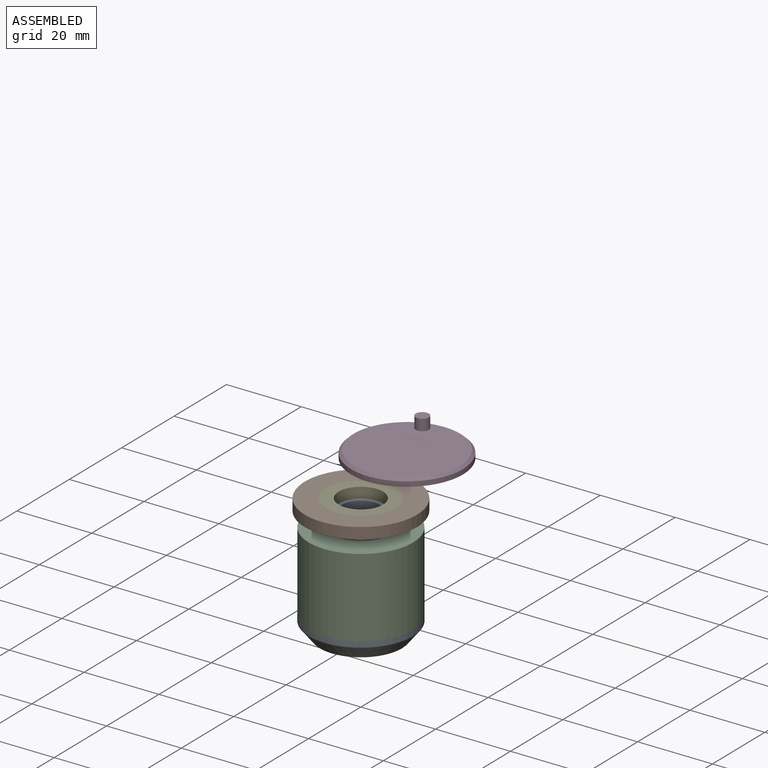
[diagram: assembled view]
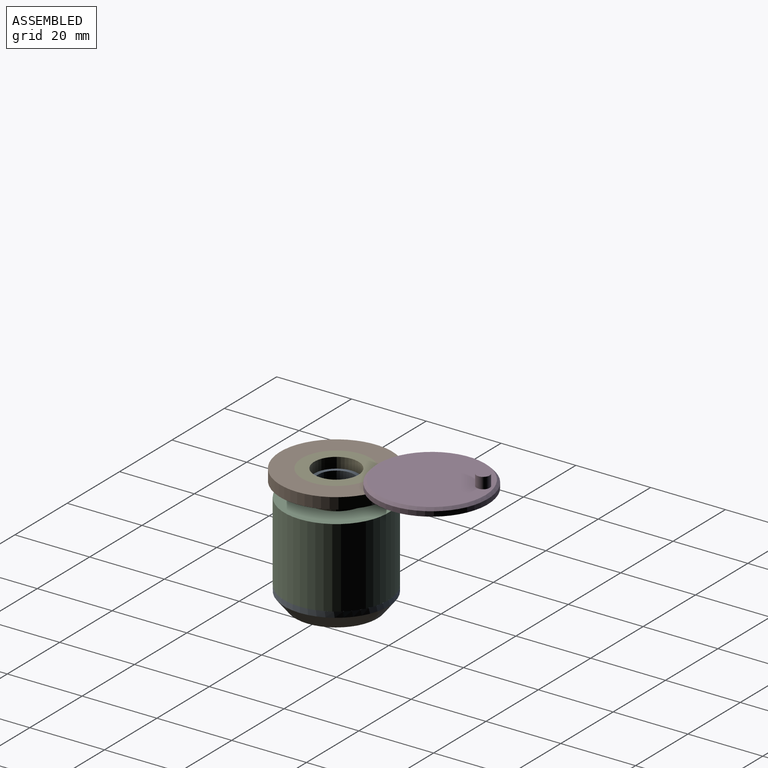
[diagram: assembled view, second angle]
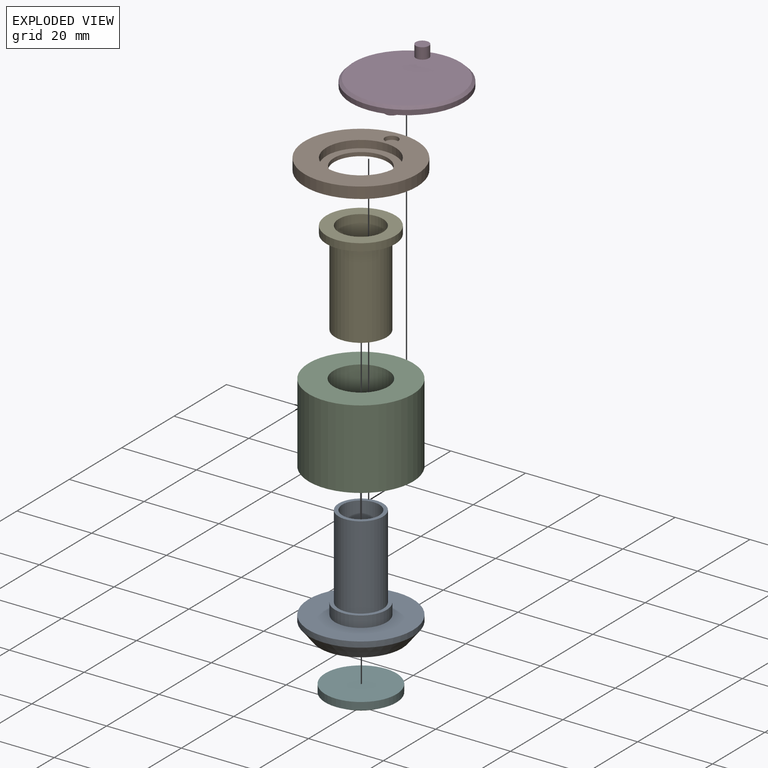
[diagram: exploded view]
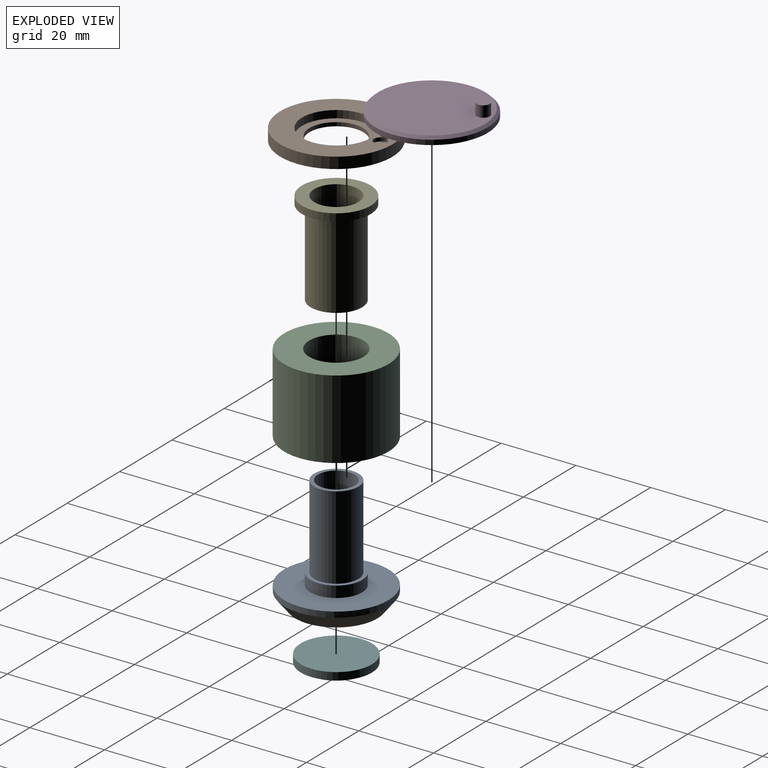
[diagram: exploded view, second angle]
ASSEMBLY  parts=6 mates=5
PART A: 11 faces, bbox 27.9x27.9x30.5 mm
  f0: cylinder r=13.95mm len=27.9mm, axis (0,0,1), area 131.5mm2, adj f7,f10
  f1: plane 22x22mm, normal (0,0,-1), area 96.6mm2, adj f9,f10
  f2: cylinder r=4.92mm len=28.5mm, axis (0,0,-1), area 881.9mm2, adj f4,f8
  f3: cylinder r=5.92mm len=22.3mm, axis (0,0,-1), area 830.2mm2, adj f4,f6
  f4: plane 11.85x11.85mm, normal (0,0,1), area 34.1mm2, adj f2,f3
  f5: cylinder r=6.9mm len=13.8mm, axis (0,0,1), area 130.1mm2, adj f6,f7
  f6: plane 13.8x13.8mm, normal (0,0,1), area 39.3mm2, adj f3,f5
  f7: plane 27.9x27.9mm, normal (0,0,1), area 461.8mm2, adj f0,f5
  f8: plane 19x19mm, normal (0,0,-1), area 207.3mm2, adj f2,f9
  f9: cylinder r=9.5mm len=19mm, axis (0,0,-1), area 119.4mm2, adj f1,f8
  f10: cone r=13.95mm half-angle=38.6deg, axis (0,0,1), area 370.9mm2, adj f0,f1
PART B: 8 faces, bbox 30x30x3 mm
  f0: cylinder r=7.2mm len=14.4mm, axis (0,0,-1), area 45.2mm2, adj f3,f5
  f1: cylinder r=15mm len=30mm, axis (0,0,-1), area 282.7mm2, adj f2,f3
  f2: plane 30x30mm, normal (0,0,1), area 431.3mm2, adj f1,f4,f6
  f3: plane 30x30mm, normal (0,0,-1), area 544mm2, adj f0,f1
  f4: cylinder r=9.2mm len=18.4mm, axis (0,0,1), area 115.6mm2, adj f2,f5
  f5: plane 18.4x18.4mm, normal (0,0,1), area 103mm2, adj f0,f4
  f6: cylinder r=1.75mm len=3.5mm, axis (0,0,1), area 11mm2, adj f2,f7
  f7: plane 3.5x3.5mm, normal (0,0,1), area 9.6mm2, adj f6
PART C: 4 faces, bbox 27.9x27.9x21.2 mm
  f0: plane 27.9x27.9mm, normal (0,0,1), area 443.9mm2, adj f2,f3
  f1: plane 27.9x27.9mm, normal (0,0,-1), area 443.9mm2, adj f2,f3
  f2: cylinder r=13.95mm len=27.9mm, axis (0,0,-1), area 1853.8mm2, adj f0,f1
  f3: cylinder r=7.3mm len=21.15mm, axis (0,0,-1), area 970.1mm2, adj f0,f1
PART D: 8 faces, bbox 30x30x6 mm
  f0: cylinder r=15mm len=30mm, axis (0,0,-1), area 122.5mm2, adj f2,f3
  f1: plane 28.6x28.6mm, normal (0,0,1), area 632.8mm2, adj f3,f6
  f2: plane 30x30mm, normal (0,0,-1), area 697.2mm2, adj f0,f4
  f3: cone r=14.3mm half-angle=45deg, axis (0,0,-1), area 91.1mm2, adj f0,f1
  f4: cylinder r=1.75mm len=3.5mm, axis (0,0,1), area 11mm2, adj f2,f5
  f5: plane 3.5x3.5mm, normal (0,0,-1), area 9.6mm2, adj f4
  f6: cylinder r=1.75mm len=3.5mm, axis (0,0,-1), area 33mm2, adj f1,f7
  f7: plane 3.5x3.5mm, normal (0,0,1), area 9.6mm2, adj f6
PART E: 6 faces, bbox 18.4x18.4x25.2 mm
  f0: plane 18.4x18.4mm, normal (0,0,1), area 155.6mm2, adj f2,f4
  f1: plane 18.4x18.4mm, normal (0,0,-1), area 116.3mm2, adj f2,f3
  f2: cylinder r=9.2mm len=18.4mm, axis (0,0,-1), area 115.6mm2, adj f0,f1
  f3: cylinder r=6.9mm len=23.15mm, axis (0,0,1), area 1003.6mm2, adj f1,f5
  f4: cylinder r=5.92mm len=25.15mm, axis (0,0,1), area 936.3mm2, adj f0,f5
  f5: plane 13.8x13.8mm, normal (0,0,-1), area 39.3mm2, adj f3,f4
PART F: 3 faces, bbox 19x19x4.5 mm
  f0: plane 19x19mm, normal (0,0,1), area 283.5mm2, adj f1
  f1: cylinder r=9.5mm len=19mm, axis (0,0,1), area 119.4mm2, adj f0,f2
  f2: sphere r=19.3mm, area 303.2mm2, adj f1
PLACE A at identity
PLACE B at identity fixed
PLACE C at identity
PLACE D rot(axis=(0,0,-1),161.6deg) t=(-3.71,22.9,0)mm
PLACE E at identity
PLACE F at identity
MATE fastened E.f3 <-> A.f5  axis (0,0,-1) through (0,0,-22.15)mm
MATE revolute D.f4 <-> B.f6  axis (0,0,-1) through (0,11.75,2)mm
MATE fastened C.f3 <-> A.f5  axis (0,0,-1) through (0,0,-25.15)mm
MATE fastened F.f1 <-> A.f0  axis (0,0,1) through (0,0,-28.35)mm
MATE fastened B.f4 <-> E.f2  axis (0,0,1) through (0,0,3)mm
